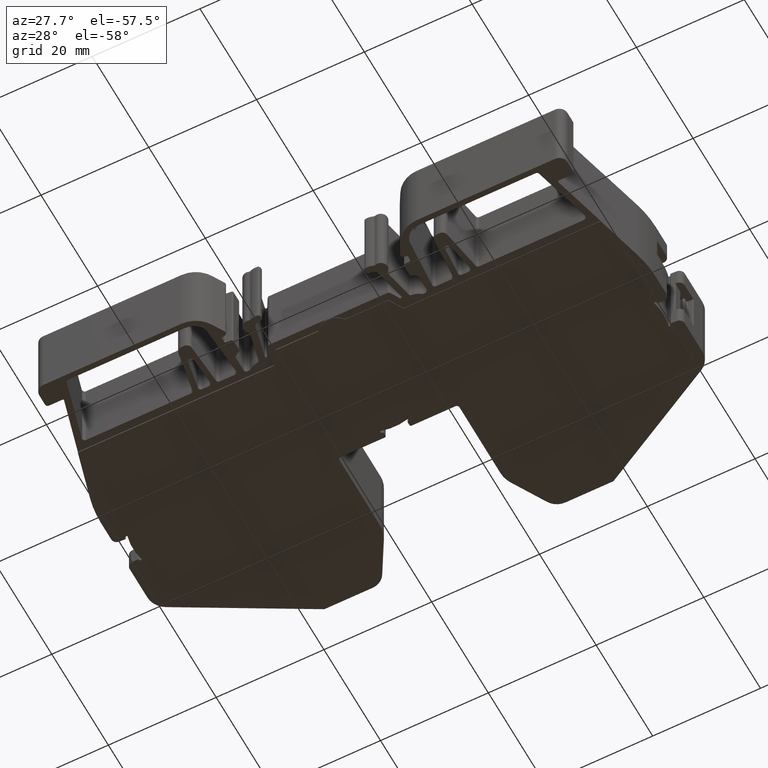
[diagram: clean part render]
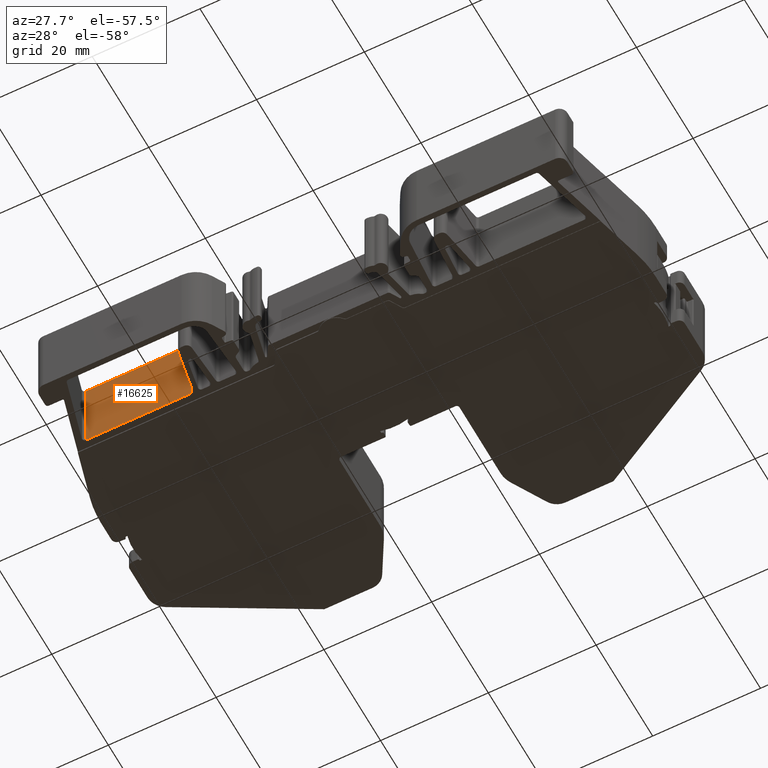
[diagram: same view with one face highlighted and labeled with its STEP entity id]
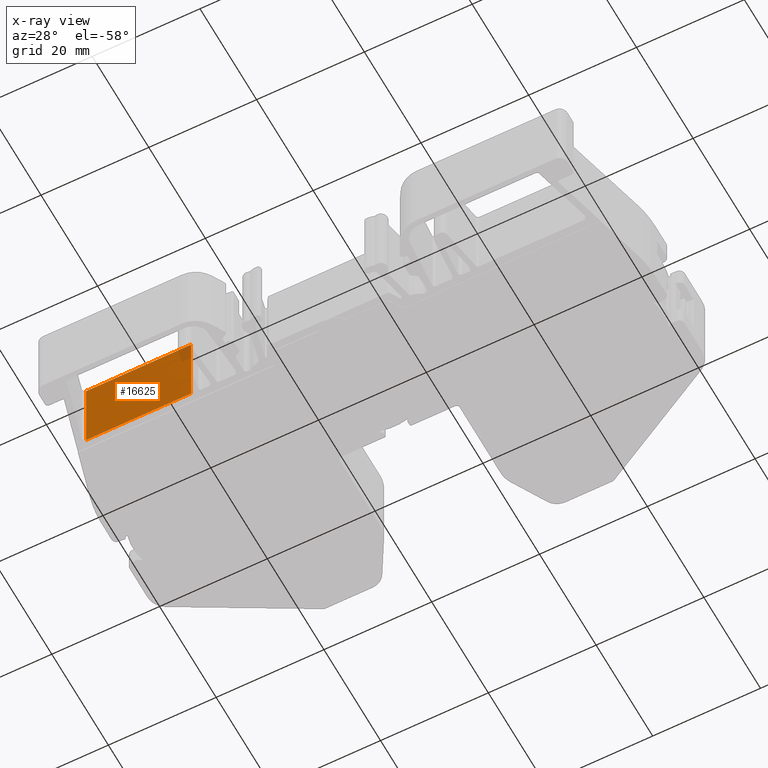
[diagram: x-ray of the same camera — body ghosted, the highlighted face saturated]
A machine part, auxiliary view. The second image highlights one B-rep face of the part: STEP entity #16625.
The next image is the same camera in x-ray: the body ghosted, the highlighted face saturated — about 3% of this face is hidden behind the body in this view.
In plain terms, the highlighted planar face has unit normal (-0, -1, 0).
Its self-contained STEP definition (entity closure, byte-faithful):
#1152 = CARTESIAN_POINT ( 'NONE',  ( 1283.781137230200100, 406.8238270224335300, 0.1500000000000003800 ) ) ;
#1157 = CARTESIAN_POINT ( 'NONE',  ( 1283.781137230200100, 406.8238270224337000, 15.05000000000000200 ) ) ;
#1928 = LINE ( 'NONE', #1957, #6598 ) ;
#1935 = DIRECTION ( 'NONE',  ( -0.0000000000000000000, -0.0000000000000000000, -1.000000000000000000 ) ) ;
#1957 = CARTESIAN_POINT ( 'NONE',  ( 1283.781137230200100, 406.8238270224337000, 15.00000000000000000 ) ) ;
#3326 = EDGE_CURVE ( 'NONE', #12593, #12611, #12479, .T. ) ;
#3794 = EDGE_CURVE ( 'NONE', #12593, #4953, #16192, .T. ) ;
#3892 = EDGE_CURVE ( 'NONE', #4958, #12611, #9524, .T. ) ;
#4625 = EDGE_CURVE ( 'NONE', #4958, #4953, #1928, .T. ) ;
#4953 = VERTEX_POINT ( 'NONE', #1152 ) ;
#4958 = VERTEX_POINT ( 'NONE', #1157 ) ;
#5114 = EDGE_LOOP ( 'NONE', ( #12764, #12808, #12754, #12730 ) ) ;
#6598 = VECTOR ( 'NONE', #1935, 1000.000000000000000 ) ;
#6762 = AXIS2_PLACEMENT_3D ( 'NONE', #10036, #10039, #10015 ) ;
#9524 = LINE ( 'NONE', #9543, #13372 ) ;
#9538 = DIRECTION ( 'NONE',  ( 1.000000000000000000, 0.0000000000000000000, -0.0000000000000000000 ) ) ;
#9543 = CARTESIAN_POINT ( 'NONE',  ( 1317.764323151782500, 406.8238270224337000, 15.05000000000000100 ) ) ;
#10011 = PLANE ( 'NONE',  #6762 ) ;
#10015 = DIRECTION ( 'NONE',  ( 1.000000000000000000, -1.425703166515882100E-014, 0.0000000000000000000 ) ) ;
#10024 = FACE_OUTER_BOUND ( 'NONE', #5114, .T. ) ;
#10036 = CARTESIAN_POINT ( 'NONE',  ( 1330.007058478294100, 406.8238270224330200, 15.00000000000000000 ) ) ;
#10039 = DIRECTION ( 'NONE',  ( -1.425703166515882100E-014, -1.000000000000000000, 0.0000000000000000000 ) ) ;
#10367 = CARTESIAN_POINT ( 'NONE',  ( 1303.249127669932000, 406.8238270224334800, 0.1499999999999995200 ) ) ;
#10371 = CARTESIAN_POINT ( 'NONE',  ( 1303.249127669932000, 406.8238270224334800, 15.05000000000000200 ) ) ;
#12460 = DIRECTION ( 'NONE',  ( 0.0000000000000000000, 0.0000000000000000000, 1.000000000000000000 ) ) ;
#12479 = LINE ( 'NONE', #12552, #13785 ) ;
#12552 = CARTESIAN_POINT ( 'NONE',  ( 1303.249127669932000, 406.8238270224334200, 15.00000000000000000 ) ) ;
#12593 = VERTEX_POINT ( 'NONE', #10367 ) ;
#12611 = VERTEX_POINT ( 'NONE', #10371 ) ;
#12730 = ORIENTED_EDGE ( 'NONE', *, *, #3794, .F. ) ;
#12754 = ORIENTED_EDGE ( 'NONE', *, *, #4625, .T. ) ;
#12764 = ORIENTED_EDGE ( 'NONE', *, *, #3326, .T. ) ;
#12808 = ORIENTED_EDGE ( 'NONE', *, *, #3892, .F. ) ;
#13348 = VECTOR ( 'NONE', #16198, 1000.000000000000000 ) ;
#13372 = VECTOR ( 'NONE', #9538, 1000.000000000000000 ) ;
#13785 = VECTOR ( 'NONE', #12460, 1000.000000000000000 ) ;
#16192 = LINE ( 'NONE', #16219, #13348 ) ;
#16198 = DIRECTION ( 'NONE',  ( -1.000000000000000000, 0.0000000000000000000, -0.0000000000000000000 ) ) ;
#16219 = CARTESIAN_POINT ( 'NONE',  ( 1375.711379883971900, 406.8238270224334800, 0.1499999999999999900 ) ) ;
#16625 = ADVANCED_FACE ( 'NONE', ( #10024 ), #10011, .T. ) ;